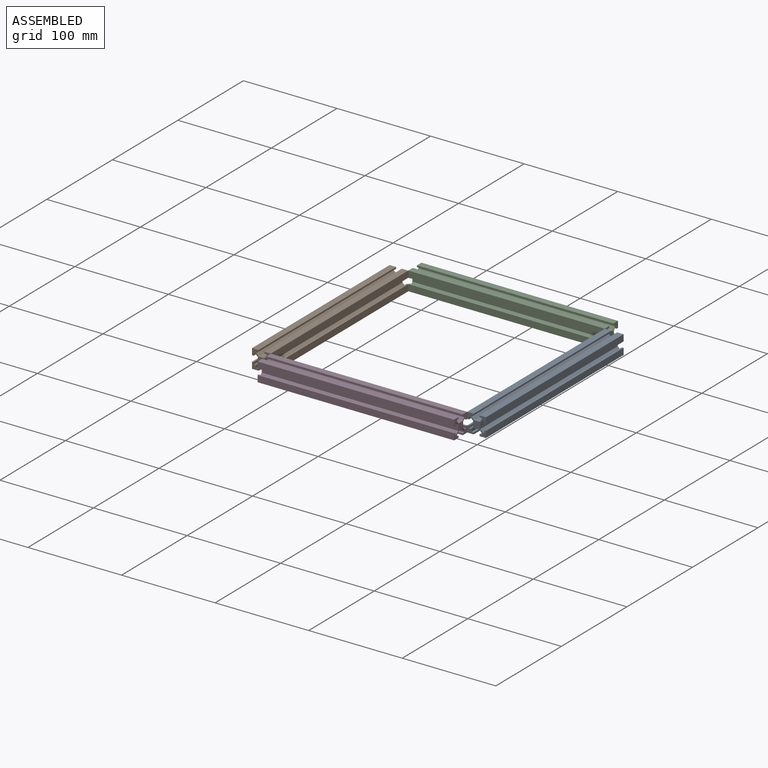
[diagram: assembled view]
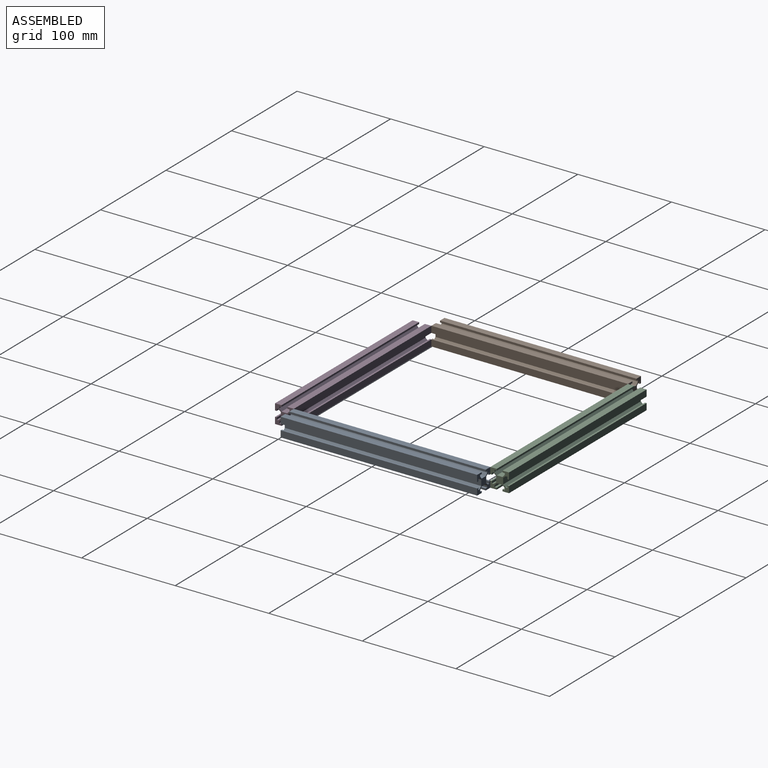
[diagram: assembled view, second angle]
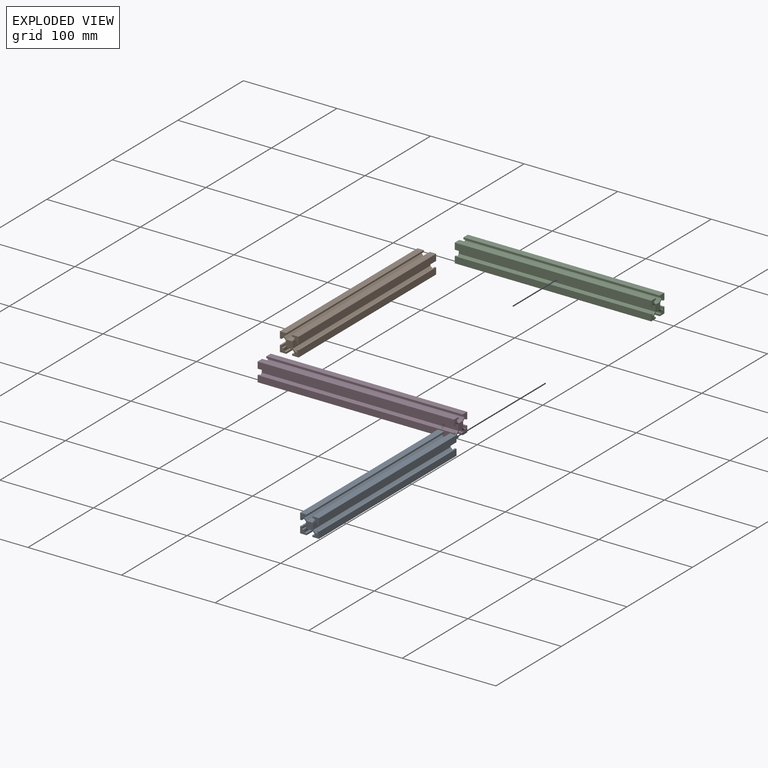
[diagram: exploded view]
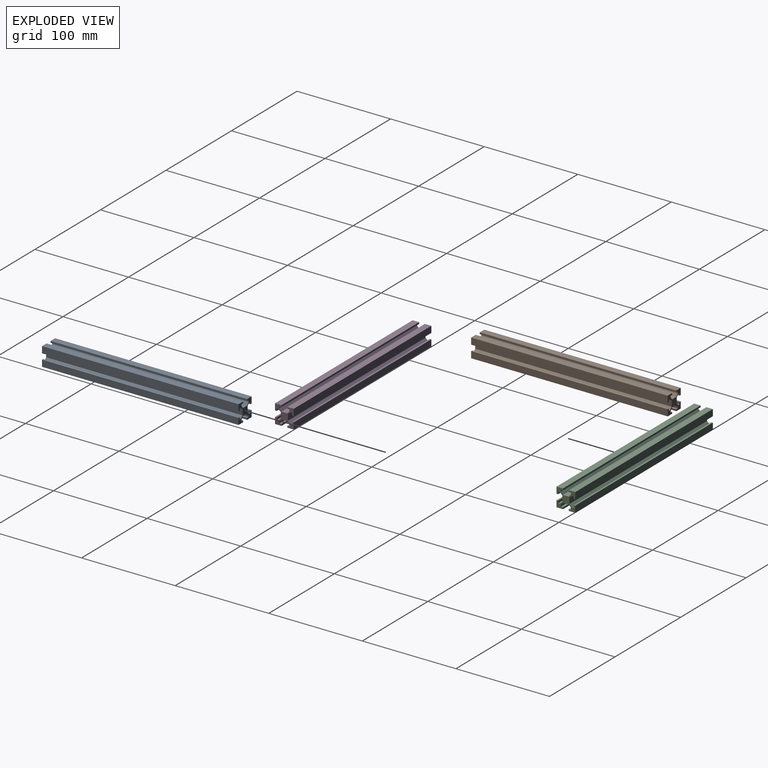
[diagram: exploded view, second angle]
ASSEMBLY  parts=4 mates=3
PART A: 46 faces, bbox 20x210x20 mm
  f0: plane 210x6.89mm, normal (1,0,0), area 1446.6mm2, adj f1,f43,f44,f45
  f1: plane 210x1.78mm, normal (0,0,1), area 373.4mm2, adj f0,f2,f44,f45
  f2: plane 210x2.35mm, normal (-1,0,0), area 493.4mm2, adj f1,f3,f44,f45
  f3: plane 210x1.78mm, normal (0,0,1), area 373.4mm2, adj f2,f4,f44,f45
  f4: plane 210x2.67mm, normal (0.66,0,0.75), area 746.4mm2, adj f3,f5,f44,f45
  f5: plane 210x6.22mm, normal (1,0,0), area 1306.8mm2, adj f4,f6,f44,f45
  f6: plane 210x2.67mm, normal (0.66,0,-0.75), area 746.4mm2, adj f5,f7,f44,f45
  f7: plane 210x1.78mm, normal (0,0,-1), area 373.4mm2, adj f6,f8,f44,f45
  f8: plane 210x2.35mm, normal (-1,0,0), area 493.4mm2, adj f7,f9,f44,f45
  f9: plane 210x1.78mm, normal (0,0,-1), area 373.4mm2, adj f8,f10,f44,f45
  f10: plane 210x6.89mm, normal (1,0,0), area 1446.6mm2, adj f9,f11,f44,f45
  f11: plane 210x6.89mm, normal (0,0,1), area 1446.6mm2, adj f10,f12,f44,f45
  f12: plane 210x1.78mm, normal (-1,0,0), area 373.4mm2, adj f11,f13,f44,f45
  f13: plane 210x2.35mm, normal (0,0,-1), area 493.4mm2, adj f12,f14,f44,f45
  f14: plane 210x1.78mm, normal (-1,0,0), area 373.4mm2, adj f13,f15,f44,f45
  f15: plane 210x2.67mm, normal (-0.75,0,0.66), area 746.4mm2, adj f14,f16,f44,f45
  f16: plane 210x6.22mm, normal (0,0,1), area 1306.8mm2, adj f15,f17,f44,f45
  f17: plane 210x2.67mm, normal (0.75,0,0.66), area 746.4mm2, adj f16,f18,f44,f45
  f18: plane 210x1.78mm, normal (1,0,0), area 373.4mm2, adj f17,f19,f44,f45
  f19: plane 210x2.35mm, normal (0,0,-1), area 493.4mm2, adj f18,f20,f44,f45
  f20: plane 210x1.78mm, normal (1,0,0), area 373.4mm2, adj f19,f21,f44,f45
  f21: plane 210x6.89mm, normal (0,0,1), area 1446.6mm2, adj f20,f22,f44,f45
  f22: plane 210x6.89mm, normal (-1,0,0), area 1446.6mm2, adj f21,f23,f44,f45
  f23: plane 210x1.78mm, normal (0,0,-1), area 373.4mm2, adj f22,f24,f44,f45
  f24: plane 210x2.35mm, normal (1,0,0), area 493.4mm2, adj f23,f25,f44,f45
  f25: plane 210x1.78mm, normal (0,0,-1), area 373.4mm2, adj f24,f26,f44,f45
  f26: plane 210x2.67mm, normal (-0.66,0,-0.75), area 746.4mm2, adj f25,f27,f44,f45
  f27: plane 210x6.22mm, normal (-1,0,0), area 1306.8mm2, adj f26,f28,f44,f45
  f28: plane 210x2.67mm, normal (-0.66,0,0.75), area 746.4mm2, adj f27,f29,f44,f45
  f29: plane 210x1.78mm, normal (0,0,1), area 373.4mm2, adj f28,f30,f44,f45
  f30: plane 210x2.35mm, normal (1,0,0), area 493.4mm2, adj f29,f31,f44,f45
  f31: plane 210x1.78mm, normal (0,0,1), area 373.4mm2, adj f30,f32,f44,f45
  f32: plane 210x6.89mm, normal (-1,0,0), area 1446.6mm2, adj f31,f33,f44,f45
  f33: plane 210x6.89mm, normal (0,0,-1), area 1446.6mm2, adj f32,f34,f44,f45
  f34: plane 210x1.78mm, normal (1,0,0), area 373.4mm2, adj f33,f35,f44,f45
  f35: plane 210x2.35mm, normal (0,0,1), area 493.4mm2, adj f34,f36,f44,f45
  f36: plane 210x1.78mm, normal (1,0,0), area 373.4mm2, adj f35,f37,f44,f45
  f37: plane 210x2.67mm, normal (0.75,0,-0.66), area 746.4mm2, adj f36,f38,f44,f45
  f38: plane 210x6.22mm, normal (0,0,-1), area 1306.8mm2, adj f37,f39,f44,f45
  f39: plane 210x2.67mm, normal (-0.75,0,-0.66), area 746.4mm2, adj f38,f40,f44,f45
  f40: plane 210x1.78mm, normal (-1,0,0), area 373.4mm2, adj f39,f41,f44,f45
  f41: plane 210x2.35mm, normal (0,0,1), area 493.4mm2, adj f40,f42,f44,f45
  f42: plane 210x1.78mm, normal (-1,0,0), area 373.4mm2, adj f41,f43,f44,f45
  f43: plane 210x6.89mm, normal (0,0,-1), area 1446.6mm2, adj f0,f42,f44,f45
  f44: plane 20x20mm, normal (0,-1,0), area 186.6mm2, adj f0,f1,f2,f3,f4,f5,f6,f7
  f45: plane 20x20mm, normal (0,1,0), area 186.6mm2, adj f0,f1,f2,f3,f4,f5,f6,f7
PART B: same geometry as A
PART C: same geometry as A
PART D: same geometry as A
PLACE A t=(195.01,16.21,-57.19)mm
PLACE B t=(-34.99,16.21,-57.19)mm
PLACE C rot(axis=(0,0,-1),90deg) t=(185.01,26.21,-57.19)mm
PLACE D rot(axis=(0,0,1),90deg) t=(-24.99,-203.79,-57.19)mm
MATE fastened B.f10 <-> D.f45  axis (1,0,0) through (-24.99,-193.79,-47.19)mm
MATE fastened A.f44 <-> D.f10  axis (0,-1,0) through (185.01,-193.79,-47.19)mm
MATE fastened B.f45 <-> C.f10  axis (0,-1,0) through (-24.99,16.21,-47.19)mm
